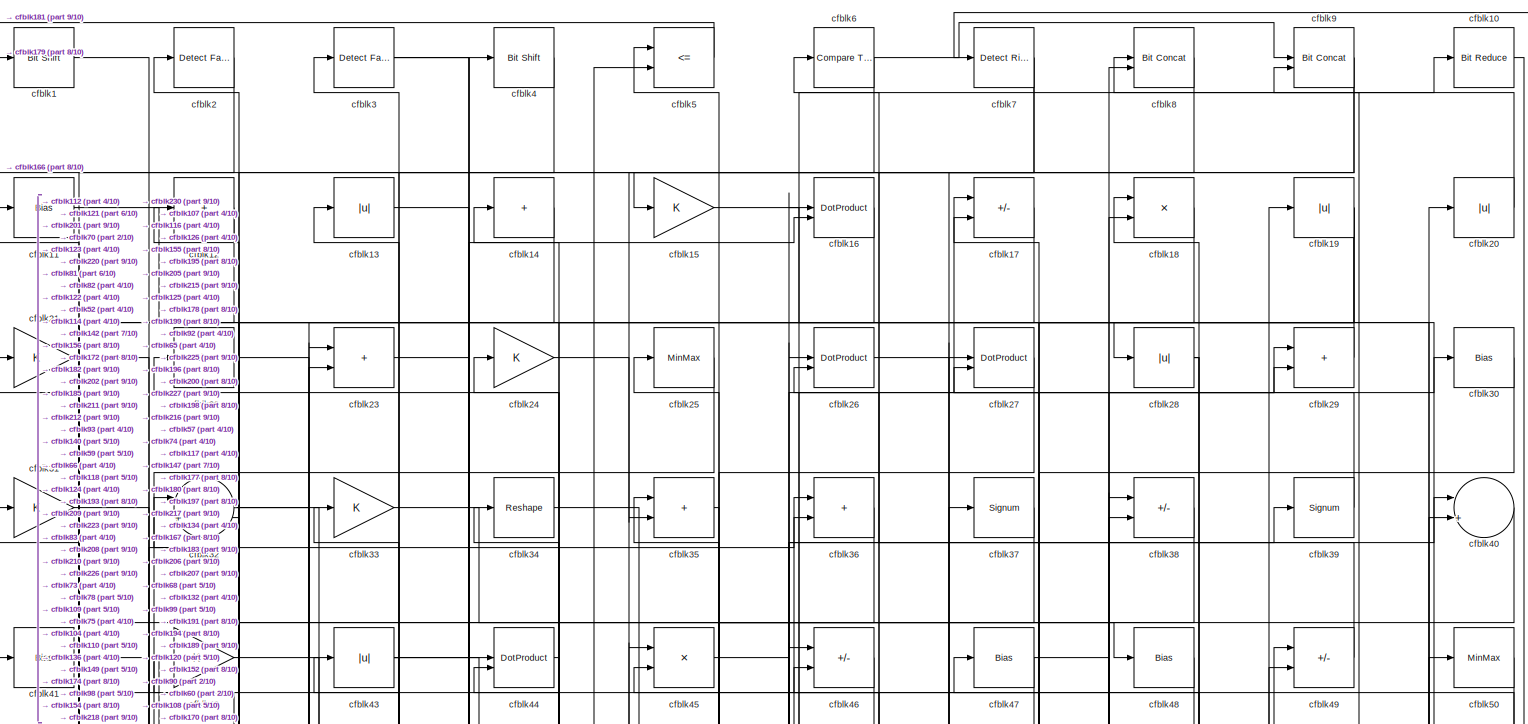
[diagram: root canvas - part 1/10, full width, top band]
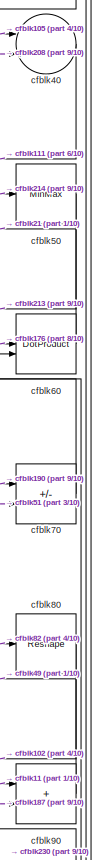
[diagram: root canvas - part 2/10, top right region]
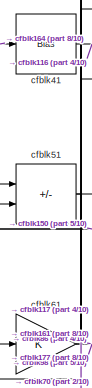
[diagram: root canvas - part 3/10, top left region]
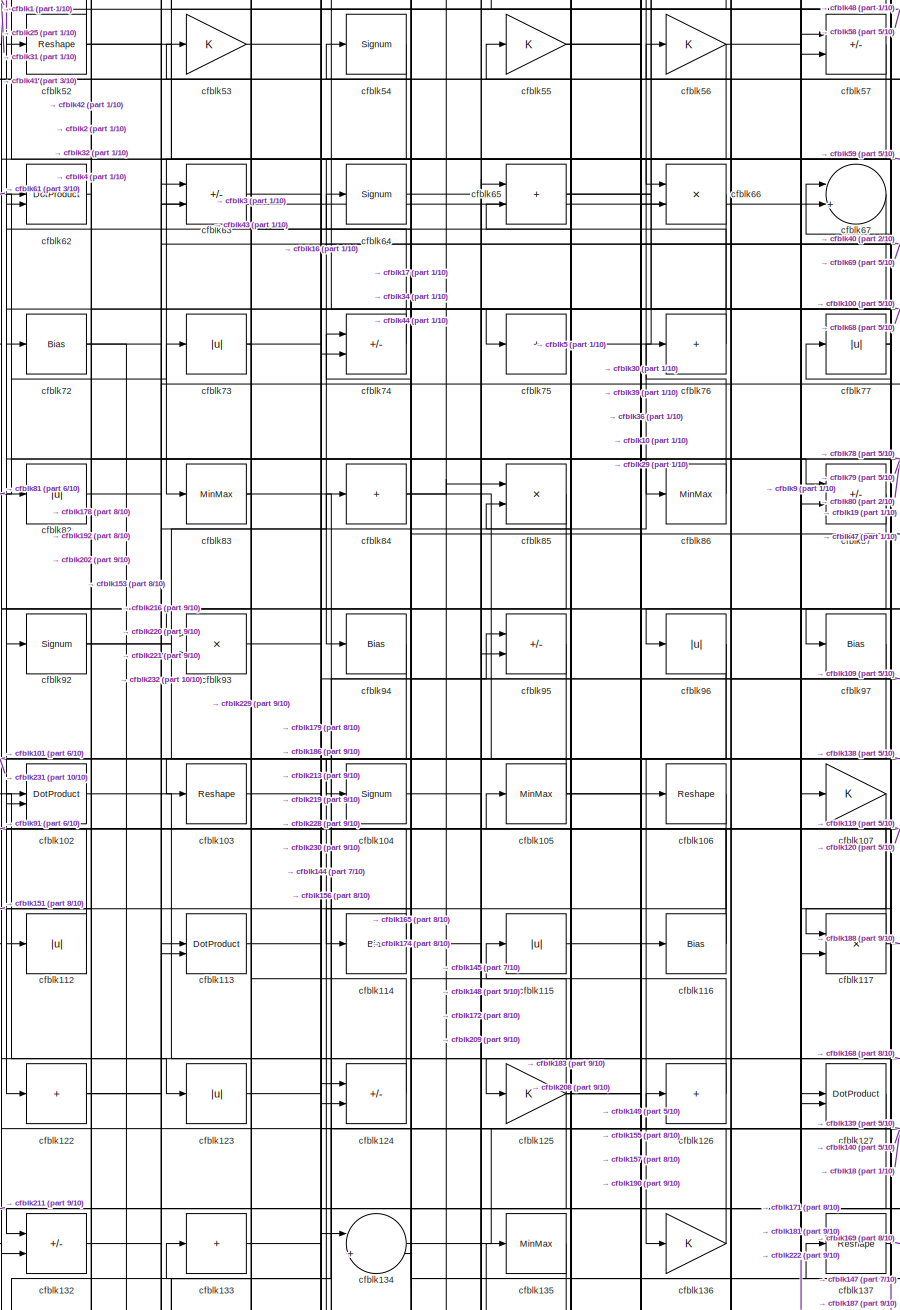
[diagram: root canvas - part 4/10, central region]
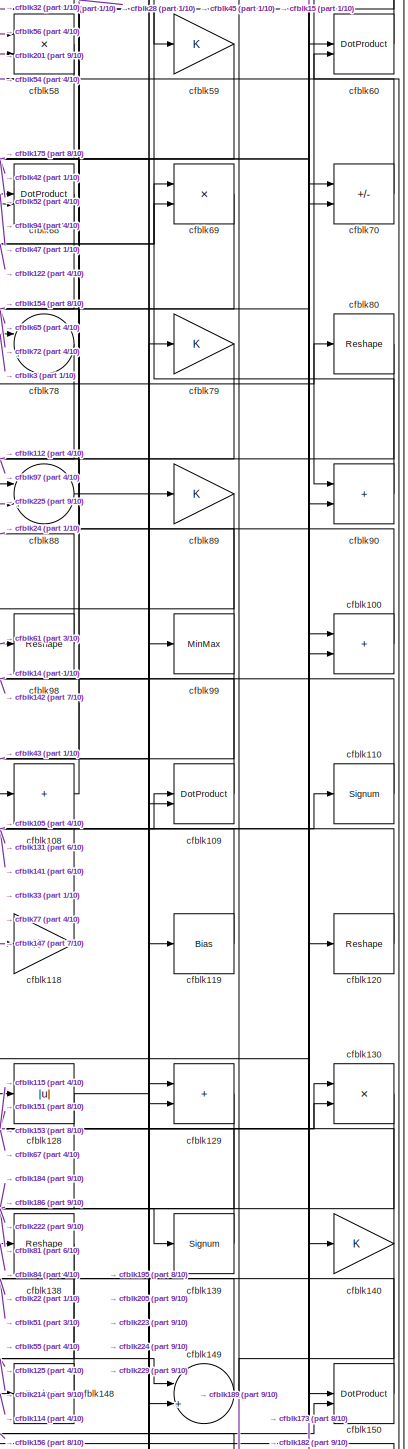
[diagram: root canvas - part 5/10, middle right region]
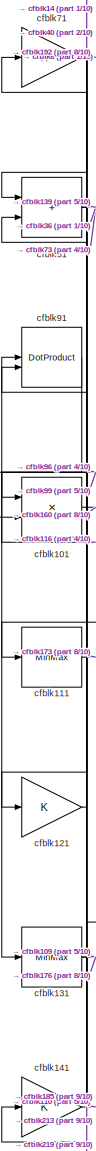
[diagram: root canvas - part 6/10, middle left region]
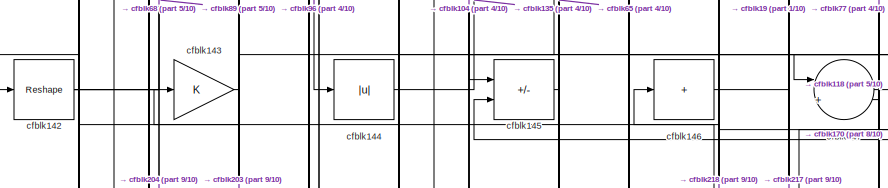
[diagram: root canvas - part 7/10, central region]
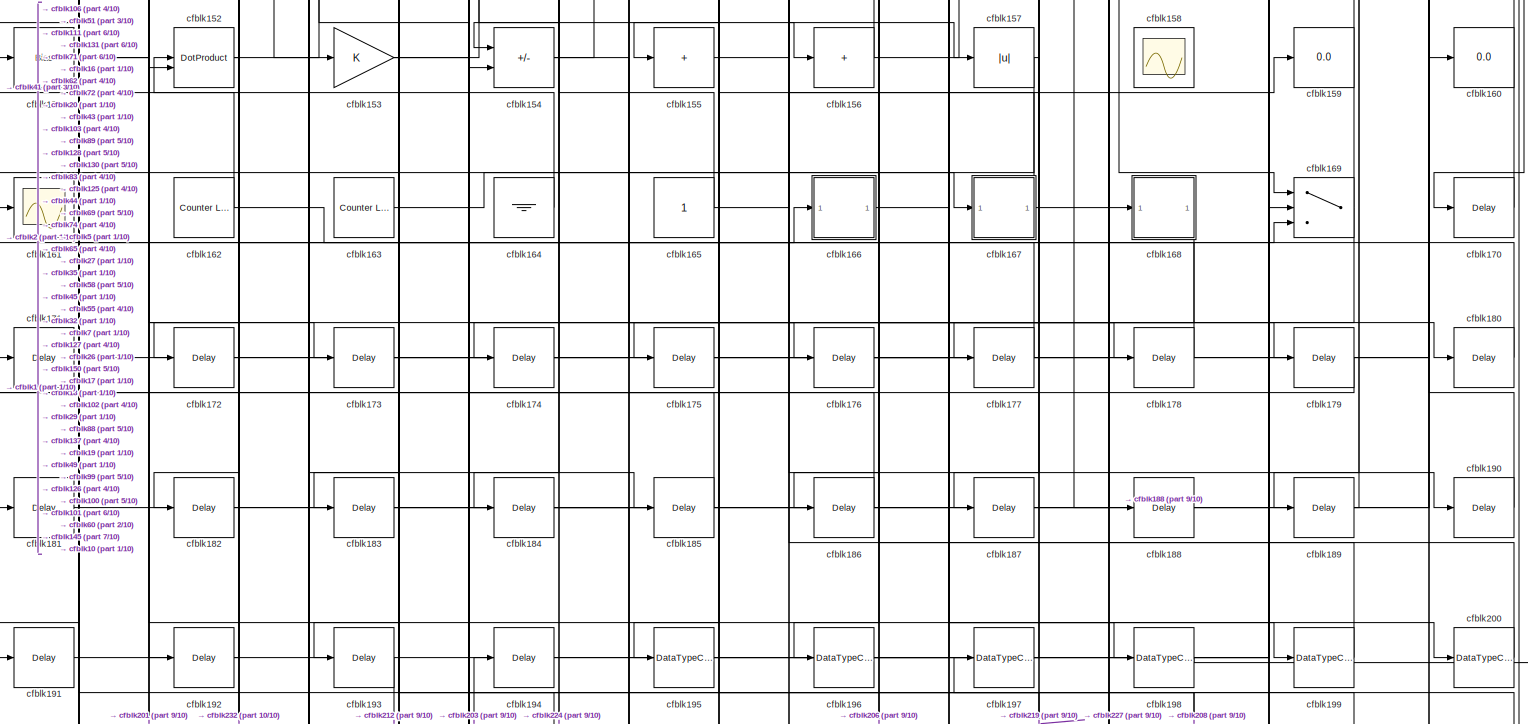
[diagram: root canvas - part 8/10, full width, bottom band]
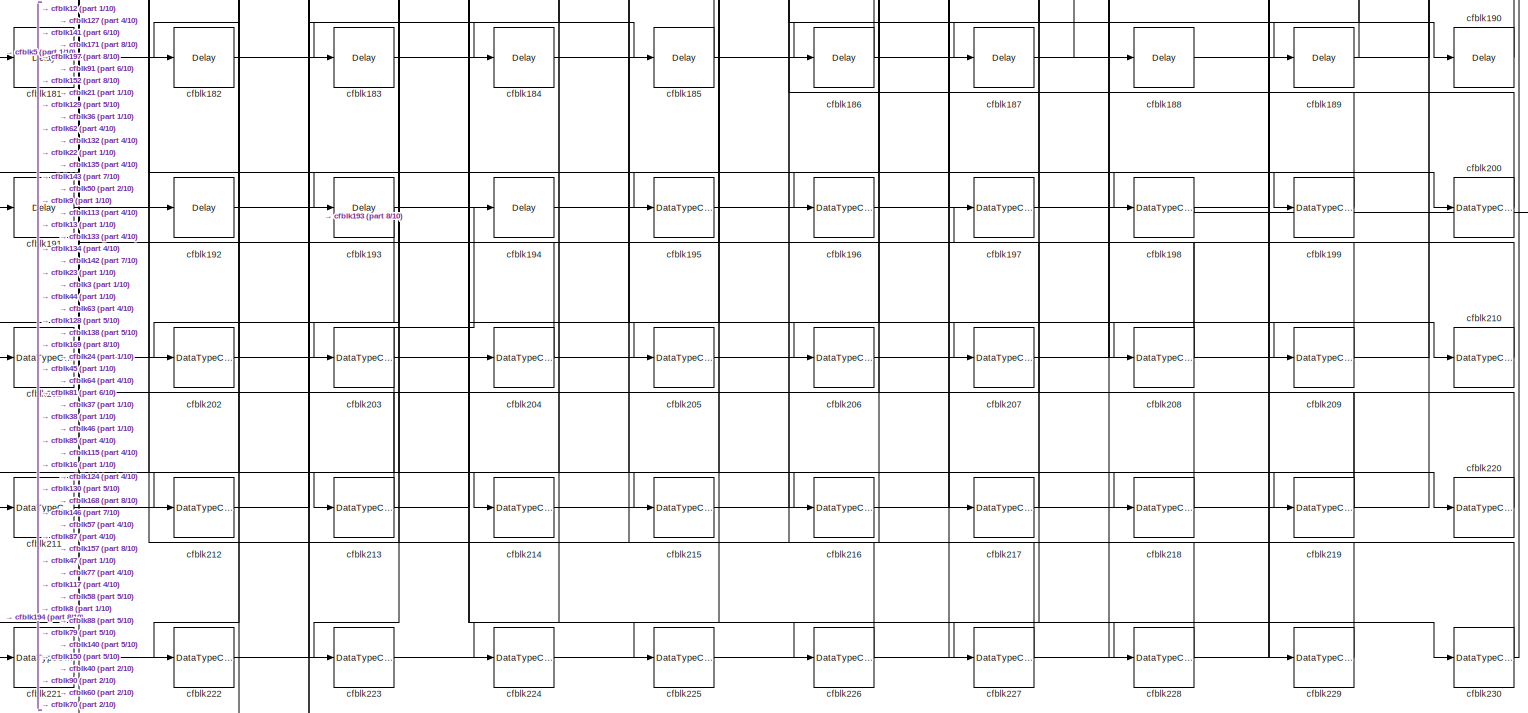
[diagram: root canvas - part 9/10, full width, bottom band]
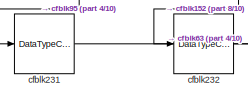
[diagram: root canvas - part 10/10, bottom left region]
MODEL slx_d86e9903bf49
KIND model
CONFIG AbsTol = auto
CONFIG EnableMultiTasking = off
CONFIG FixedStep = auto
CONFIG MaxStep = auto
CONFIG MinStep = auto
CONFIG RelTol = 1e-3
CONFIG SampleTimeConstraint = Unconstrained
CONFIG SolverName = VariableStepAuto
CONFIG StartTime = 0.0
CONFIG StopTime = 10.0
BLOCK [Reference] cfblk1  REF=hdlsllib/Logic and Bit
Operations/Bit Shift
  SourceBlock = hdlsllib/Logic and Bit\nOperations/Bit Shift
  SourceType = Bit Shift
BLOCK [Reference] cfblk10  REF=hdlsllib/Logic and Bit
Operations/Bit Reduce
  SourceBlock = hdlsllib/Logic and Bit\nOperations/Bit Reduce
  SourceType = Bit Reduce
BLOCK [Sum] cfblk100
  IconShape = rectangular
BLOCK [Product] cfblk101
  Inputs = */
  RndMeth = Zero
  SaturateOnIntegerOverflow = on
BLOCK [DotProduct] cfblk102
  OutDataTypeStr = Inherit: Inherit via internal rule
BLOCK [Reshape] cfblk103
BLOCK [Signum] cfblk104
BLOCK [MinMax] cfblk105
BLOCK [Reshape] cfblk106
BLOCK [Gain] cfblk107
BLOCK [Sum] cfblk108
  IconShape = rectangular
  Inputs = +
BLOCK [DotProduct] cfblk109
  OutDataTypeStr = Inherit: Inherit via internal rule
BLOCK [Bias] cfblk11
  Bias = 0.0
  SaturateOnIntegerOverflow = off
BLOCK [Signum] cfblk110
BLOCK [MinMax] cfblk111
BLOCK [Abs] cfblk112
  SaturateOnIntegerOverflow = off
BLOCK [DotProduct] cfblk113
  OutDataTypeStr = Inherit: Inherit via internal rule
BLOCK [Bias] cfblk114
  Bias = 0.0
  SaturateOnIntegerOverflow = off
BLOCK [Abs] cfblk115
  SaturateOnIntegerOverflow = off
BLOCK [Bias] cfblk116
  Bias = 0.0
  SaturateOnIntegerOverflow = off
BLOCK [Product] cfblk117
  Inputs = */
  RndMeth = Zero
  SaturateOnIntegerOverflow = on
BLOCK [Gain] cfblk118
BLOCK [Bias] cfblk119
  Bias = 0.0
  SaturateOnIntegerOverflow = off
BLOCK [Sum] cfblk12
  IconShape = rectangular
  Inputs = +
BLOCK [Reshape] cfblk120
BLOCK [Gain] cfblk121
BLOCK [Sum] cfblk122
  IconShape = rectangular
  Inputs = +
BLOCK [Abs] cfblk123
  SaturateOnIntegerOverflow = off
BLOCK [Sum] cfblk124
  IconShape = rectangular
  Inputs = +-
BLOCK [Gain] cfblk125
BLOCK [Sum] cfblk126
  IconShape = rectangular
  Inputs = +
BLOCK [DotProduct] cfblk127
  OutDataTypeStr = Inherit: Inherit via internal rule
BLOCK [Abs] cfblk128
  SaturateOnIntegerOverflow = off
BLOCK [Sum] cfblk129
  IconShape = rectangular
BLOCK [Abs] cfblk13
  SaturateOnIntegerOverflow = off
BLOCK [Product] cfblk130
  Inputs = */
  RndMeth = Zero
  SaturateOnIntegerOverflow = on
BLOCK [MinMax] cfblk131
BLOCK [Sum] cfblk132
  IconShape = rectangular
  Inputs = +-
BLOCK [Sum] cfblk133
  IconShape = rectangular
  Inputs = +
BLOCK [Sum] cfblk134
  Inputs = |++
BLOCK [MinMax] cfblk135
BLOCK [Gain] cfblk136
BLOCK [Reshape] cfblk137
BLOCK [Reshape] cfblk138
BLOCK [Signum] cfblk139
BLOCK [Sum] cfblk14
  IconShape = rectangular
  Inputs = +
BLOCK [Gain] cfblk140
BLOCK [Gain] cfblk141
BLOCK [Reshape] cfblk142
BLOCK [Gain] cfblk143
BLOCK [Abs] cfblk144
  SaturateOnIntegerOverflow = off
BLOCK [Sum] cfblk145
  IconShape = rectangular
  Inputs = +-
BLOCK [Sum] cfblk146
  IconShape = rectangular
  Inputs = +
BLOCK [Sum] cfblk147
  Inputs = |++
BLOCK [Reshape] cfblk148
BLOCK [Sum] cfblk149
  Inputs = |++
BLOCK [Gain] cfblk15
BLOCK [DotProduct] cfblk150
  OutDataTypeStr = Inherit: Inherit via internal rule
BLOCK [Bias] cfblk151
  Bias = 0.0
  SaturateOnIntegerOverflow = off
BLOCK [DotProduct] cfblk152
  OutDataTypeStr = Inherit: Inherit via internal rule
BLOCK [Gain] cfblk153
BLOCK [Sum] cfblk154
  IconShape = rectangular
  Inputs = +-
BLOCK [Sum] cfblk155
  IconShape = rectangular
  Inputs = +
BLOCK [Sum] cfblk156
  IconShape = rectangular
  Inputs = +
BLOCK [Abs] cfblk157
  SaturateOnIntegerOverflow = off
BLOCK [Scope] cfblk158
  Floating = on
  NumInputPorts = 1
  ScopeSpecificationString = Simulink.scopes.TimeScopeBlockCfg('CurrentConfiguration', extmgr.ConfigurationSet(extmgr.Configuration('Core','General UI',true,'FigureColor',[0.156862745098039 0.156862745098039 0.156862745098039]),extmgr.Configuration('Core','Source UI',true),extmgr.Configuration('Sources','WiredSimulink',true,'DataLoggingVariableName','ScopeData1','DataLoggingSaveFormat','StructureWithTime','DataLoggingLimitDat...<+2713ch>
BLOCK [Display] cfblk159
  Decimation = 1
BLOCK [DotProduct] cfblk16
  OutDataTypeStr = Inherit: Inherit via internal rule
BLOCK [Display] cfblk160
  Decimation = 1
BLOCK [Scope] cfblk161
  Floating = off
  NumInputPorts = 1
  ScopeSpecificationString = Simulink.scopes.TimeScopeBlockCfg('CurrentConfiguration', extmgr.ConfigurationSet(extmgr.Configuration('Core','General UI',true),extmgr.Configuration('Core','Source UI',true),extmgr.Configuration('Sources','WiredSimulink',true,'DataLoggingVariableName','ScopeData2','DataLoggingSaveFormat','Array','DataLoggingLimitDataPoints',true,'DataLoggingDecimation','1'),extmgr.Configuration('Visuals','Time Do...<+868ch>
BLOCK [Reference] cfblk162  REF=hdlsllib/Sources/Counter
Limited
  SourceBlock = hdlsllib/Sources/Counter\nLimited
  SourceType = Counter Limited
BLOCK [Reference] cfblk163  REF=hdlsllib/Sources/Counter
Limited
  SourceBlock = hdlsllib/Sources/Counter\nLimited
  SourceType = Counter Limited
BLOCK [Ground] cfblk164
BLOCK [Constant] cfblk165
  SampleTime = -1
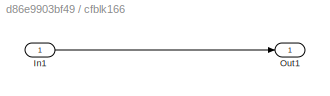
BLOCK [SubSystem] cfblk166
  LibrarySourceBlock = hdlsllib/Ports &\nSubsystems/Subsystem
BLOCK [Inport] cfblk166/In1
BLOCK [Outport] cfblk166/Out1
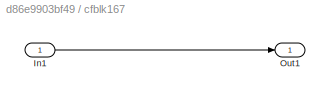
BLOCK [SubSystem] cfblk167
  LibrarySourceBlock = hdlsllib/Ports &\nSubsystems/Subsystem
BLOCK [Inport] cfblk167/In1
BLOCK [Outport] cfblk167/Out1
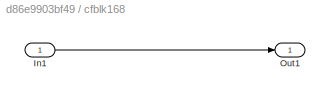
BLOCK [SubSystem] cfblk168
  LibrarySourceBlock = hdlsllib/Ports &\nSubsystems/Subsystem
BLOCK [Inport] cfblk168/In1
BLOCK [Outport] cfblk168/Out1
BLOCK [Switch] cfblk169
  InputSameDT = off
  SaturateOnIntegerOverflow = off
BLOCK [Sum] cfblk17
  IconShape = rectangular
  Inputs = +-
BLOCK [Delay] cfblk170
  InputPortMap = u0
  SampleTime = 1
BLOCK [Delay] cfblk171
  InputPortMap = u0
  SampleTime = 1
BLOCK [Delay] cfblk172
  InputPortMap = u0
  SampleTime = 1
BLOCK [Delay] cfblk173
  InputPortMap = u0
  SampleTime = 1
BLOCK [Delay] cfblk174
  InputPortMap = u0
  SampleTime = 1
BLOCK [Delay] cfblk175
  InputPortMap = u0
  SampleTime = 1
BLOCK [Delay] cfblk176
  InputPortMap = u0
  SampleTime = 1
BLOCK [Delay] cfblk177
  InputPortMap = u0
  SampleTime = 1
BLOCK [Delay] cfblk178
  InputPortMap = u0
  SampleTime = 1
BLOCK [Delay] cfblk179
  InputPortMap = u0
  SampleTime = 1
BLOCK [Product] cfblk18
  Inputs = */
  RndMeth = Zero
  SaturateOnIntegerOverflow = on
BLOCK [Delay] cfblk180
  InputPortMap = u0
  SampleTime = 1
BLOCK [Delay] cfblk181
  InputPortMap = u0
  SampleTime = 1
BLOCK [Delay] cfblk182
  InputPortMap = u0
  SampleTime = 1
BLOCK [Delay] cfblk183
  InputPortMap = u0
  SampleTime = 1
BLOCK [Delay] cfblk184
  InputPortMap = u0
  SampleTime = 1
BLOCK [Delay] cfblk185
  InputPortMap = u0
  SampleTime = 1
BLOCK [Delay] cfblk186
  InputPortMap = u0
  SampleTime = 1
BLOCK [Delay] cfblk187
  InputPortMap = u0
  SampleTime = 1
BLOCK [Delay] cfblk188
  InputPortMap = u0
  SampleTime = 1
BLOCK [Delay] cfblk189
  InputPortMap = u0
  SampleTime = 1
BLOCK [Abs] cfblk19
  SaturateOnIntegerOverflow = off
BLOCK [Delay] cfblk190
  InputPortMap = u0
  SampleTime = 1
BLOCK [Delay] cfblk191
  InputPortMap = u0
  SampleTime = 1
BLOCK [Delay] cfblk192
  InputPortMap = u0
  SampleTime = 1
BLOCK [Delay] cfblk193
  InputPortMap = u0
  SampleTime = 1
BLOCK [Delay] cfblk194
  InputPortMap = u0
  SampleTime = 1
BLOCK [DataTypeConversion] cfblk195
  OutDataTypeStr = uint8
  RndMeth = Floor
  SaturateOnIntegerOverflow = off
BLOCK [DataTypeConversion] cfblk196
  OutDataTypeStr = uint8
  RndMeth = Floor
  SaturateOnIntegerOverflow = off
BLOCK [DataTypeConversion] cfblk197
  OutDataTypeStr = uint8
  RndMeth = Floor
  SaturateOnIntegerOverflow = off
BLOCK [DataTypeConversion] cfblk198
  OutDataTypeStr = uint8
  RndMeth = Floor
  SaturateOnIntegerOverflow = off
BLOCK [DataTypeConversion] cfblk199
  OutDataTypeStr = uint8
  RndMeth = Floor
  SaturateOnIntegerOverflow = off
BLOCK [Reference] cfblk2  REF=hdlsllib/Logic and Bit
Operations/Detect Fall
Nonpositive
  SourceBlock = hdlsllib/Logic and Bit\nOperations/Detect Fall\nNonpositive
  SourceType = Detect Fall Nonpositive
BLOCK [Abs] cfblk20
  SaturateOnIntegerOverflow = off
BLOCK [DataTypeConversion] cfblk200
  OutDataTypeStr = uint8
  RndMeth = Floor
  SaturateOnIntegerOverflow = off
BLOCK [DataTypeConversion] cfblk201
  RndMeth = Floor
  SaturateOnIntegerOverflow = off
BLOCK [DataTypeConversion] cfblk202
  OutDataTypeStr = uint8
  RndMeth = Floor
  SaturateOnIntegerOverflow = off
BLOCK [DataTypeConversion] cfblk203
  RndMeth = Floor
  SaturateOnIntegerOverflow = off
BLOCK [DataTypeConversion] cfblk204
  OutDataTypeStr = uint8
  RndMeth = Floor
  SaturateOnIntegerOverflow = off
BLOCK [DataTypeConversion] cfblk205
  OutDataTypeStr = uint8
  RndMeth = Floor
  SaturateOnIntegerOverflow = off
BLOCK [DataTypeConversion] cfblk206
  OutDataTypeStr = uint8
  RndMeth = Floor
  SaturateOnIntegerOverflow = off
BLOCK [DataTypeConversion] cfblk207
  OutDataTypeStr = uint8
  RndMeth = Floor
  SaturateOnIntegerOverflow = off
BLOCK [DataTypeConversion] cfblk208
  RndMeth = Floor
  SaturateOnIntegerOverflow = off
BLOCK [DataTypeConversion] cfblk209
  OutDataTypeStr = uint8
  RndMeth = Floor
  SaturateOnIntegerOverflow = off
BLOCK [Gain] cfblk21
BLOCK [DataTypeConversion] cfblk210
  OutDataTypeStr = uint8
  RndMeth = Floor
  SaturateOnIntegerOverflow = off
BLOCK [DataTypeConversion] cfblk211
  OutDataTypeStr = uint8
  RndMeth = Floor
  SaturateOnIntegerOverflow = off
BLOCK [DataTypeConversion] cfblk212
  OutDataTypeStr = uint8
  RndMeth = Floor
  SaturateOnIntegerOverflow = off
BLOCK [DataTypeConversion] cfblk213
  RndMeth = Floor
  SaturateOnIntegerOverflow = off
BLOCK [DataTypeConversion] cfblk214
  OutDataTypeStr = uint8
  RndMeth = Floor
  SaturateOnIntegerOverflow = off
BLOCK [DataTypeConversion] cfblk215
  OutDataTypeStr = uint8
  RndMeth = Floor
  SaturateOnIntegerOverflow = off
BLOCK [DataTypeConversion] cfblk216
  OutDataTypeStr = uint8
  RndMeth = Floor
  SaturateOnIntegerOverflow = off
BLOCK [DataTypeConversion] cfblk217
  OutDataTypeStr = uint8
  RndMeth = Floor
  SaturateOnIntegerOverflow = off
BLOCK [DataTypeConversion] cfblk218
  OutDataTypeStr = uint8
  RndMeth = Floor
  SaturateOnIntegerOverflow = off
BLOCK [DataTypeConversion] cfblk219
  RndMeth = Floor
  SaturateOnIntegerOverflow = off
BLOCK [Bias] cfblk22
  Bias = 0.0
  SaturateOnIntegerOverflow = off
BLOCK [DataTypeConversion] cfblk220
  OutDataTypeStr = uint8
  RndMeth = Floor
  SaturateOnIntegerOverflow = off
BLOCK [DataTypeConversion] cfblk221
  OutDataTypeStr = uint8
  RndMeth = Floor
  SaturateOnIntegerOverflow = off
BLOCK [DataTypeConversion] cfblk222
  OutDataTypeStr = uint8
  RndMeth = Floor
  SaturateOnIntegerOverflow = off
BLOCK [DataTypeConversion] cfblk223
  OutDataTypeStr = uint8
  RndMeth = Floor
  SaturateOnIntegerOverflow = off
BLOCK [DataTypeConversion] cfblk224
  OutDataTypeStr = uint8
  RndMeth = Floor
  SaturateOnIntegerOverflow = off
BLOCK [DataTypeConversion] cfblk225
  OutDataTypeStr = uint8
  RndMeth = Floor
  SaturateOnIntegerOverflow = off
BLOCK [DataTypeConversion] cfblk226
  OutDataTypeStr = uint8
  RndMeth = Floor
  SaturateOnIntegerOverflow = off
BLOCK [DataTypeConversion] cfblk227
  OutDataTypeStr = uint8
  RndMeth = Floor
  SaturateOnIntegerOverflow = off
BLOCK [DataTypeConversion] cfblk228
  OutDataTypeStr = uint8
  RndMeth = Floor
  SaturateOnIntegerOverflow = off
BLOCK [DataTypeConversion] cfblk229
  OutDataTypeStr = uint8
  RndMeth = Floor
  SaturateOnIntegerOverflow = off
BLOCK [Sum] cfblk23
  IconShape = rectangular
BLOCK [DataTypeConversion] cfblk230
  RndMeth = Floor
  SaturateOnIntegerOverflow = off
BLOCK [DataTypeConversion] cfblk231
  OutDataTypeStr = uint8
  RndMeth = Floor
  SaturateOnIntegerOverflow = off
BLOCK [DataTypeConversion] cfblk232
  OutDataTypeStr = uint8
  RndMeth = Floor
  SaturateOnIntegerOverflow = off
BLOCK [Gain] cfblk24
BLOCK [MinMax] cfblk25
BLOCK [DotProduct] cfblk26
  OutDataTypeStr = Inherit: Inherit via internal rule
BLOCK [DotProduct] cfblk27
  OutDataTypeStr = Inherit: Inherit via internal rule
BLOCK [Abs] cfblk28
  SaturateOnIntegerOverflow = off
BLOCK [Sum] cfblk29
  IconShape = rectangular
BLOCK [Reference] cfblk3  REF=hdlsllib/Logic and Bit
Operations/Detect Fall
Negative
  SourceBlock = hdlsllib/Logic and Bit\nOperations/Detect Fall\nNegative
  SourceType = Detect Fall Negative
BLOCK [Bias] cfblk30
  Bias = 0.0
  SaturateOnIntegerOverflow = off
BLOCK [Gain] cfblk31
BLOCK [Sum] cfblk32
  Inputs = |++
BLOCK [Gain] cfblk33
BLOCK [Reshape] cfblk34
BLOCK [Sum] cfblk35
  IconShape = rectangular
BLOCK [Sum] cfblk36
  IconShape = rectangular
BLOCK [Signum] cfblk37
BLOCK [Sum] cfblk38
  IconShape = rectangular
  Inputs = +-
BLOCK [Signum] cfblk39
BLOCK [Reference] cfblk4  REF=hdlsllib/Logic and Bit
Operations/Bit Shift
  SourceBlock = hdlsllib/Logic and Bit\nOperations/Bit Shift
  SourceType = Bit Shift
BLOCK [Sum] cfblk40
  Inputs = |++
BLOCK [Bias] cfblk41
  Bias = 0.0
  SaturateOnIntegerOverflow = off
BLOCK [Gain] cfblk42
BLOCK [Abs] cfblk43
  SaturateOnIntegerOverflow = off
BLOCK [DotProduct] cfblk44
  OutDataTypeStr = Inherit: Inherit via internal rule
BLOCK [Product] cfblk45
  Inputs = */
  RndMeth = Zero
  SaturateOnIntegerOverflow = on
BLOCK [Sum] cfblk46
  IconShape = rectangular
  Inputs = +-
BLOCK [Bias] cfblk47
  Bias = 0.0
  SaturateOnIntegerOverflow = off
BLOCK [Bias] cfblk48
  Bias = 0.0
  SaturateOnIntegerOverflow = off
BLOCK [Sum] cfblk49
  IconShape = rectangular
  Inputs = +-
BLOCK [RelationalOperator] cfblk5
  InputSameDT = off
  Operator = <=
  OutDataTypeStr = boolean
BLOCK [MinMax] cfblk50
BLOCK [Sum] cfblk51
  IconShape = rectangular
  Inputs = +-
BLOCK [Reshape] cfblk52
BLOCK [Gain] cfblk53
BLOCK [Signum] cfblk54
BLOCK [Gain] cfblk55
BLOCK [Gain] cfblk56
BLOCK [Sum] cfblk57
  IconShape = rectangular
  Inputs = +-
BLOCK [Product] cfblk58
  Inputs = */
  RndMeth = Zero
  SaturateOnIntegerOverflow = on
BLOCK [Gain] cfblk59
BLOCK [Reference] cfblk6  REF=hdlsllib/Logic and Bit
Operations/Compare
To Zero
  SourceBlock = hdlsllib/Logic and Bit\nOperations/Compare\nTo Zero
  SourceType = Compare To Zero
BLOCK [DotProduct] cfblk60
  OutDataTypeStr = Inherit: Inherit via internal rule
BLOCK [Gain] cfblk61
BLOCK [DotProduct] cfblk62
  OutDataTypeStr = Inherit: Inherit via internal rule
BLOCK [Sum] cfblk63
  IconShape = rectangular
  Inputs = +-
BLOCK [Signum] cfblk64
BLOCK [Sum] cfblk65
  IconShape = rectangular
BLOCK [Product] cfblk66
  Inputs = */
  RndMeth = Zero
  SaturateOnIntegerOverflow = on
BLOCK [Sum] cfblk67
  Inputs = |++
BLOCK [DotProduct] cfblk68
  OutDataTypeStr = Inherit: Inherit via internal rule
BLOCK [Product] cfblk69
  Inputs = */
  RndMeth = Zero
  SaturateOnIntegerOverflow = on
BLOCK [Reference] cfblk7  REF=hdlsllib/Logic and Bit
Operations/Detect Rise
Positive
  SourceBlock = hdlsllib/Logic and Bit\nOperations/Detect Rise\nPositive
  SourceType = Detect Rise Positive
BLOCK [Sum] cfblk70
  IconShape = rectangular
  Inputs = +-
BLOCK [Gain] cfblk71
BLOCK [Bias] cfblk72
  Bias = 0.0
  SaturateOnIntegerOverflow = off
BLOCK [Abs] cfblk73
  SaturateOnIntegerOverflow = off
BLOCK [Sum] cfblk74
  IconShape = rectangular
  Inputs = +-
BLOCK [Sum] cfblk75
  IconShape = rectangular
  Inputs = +
BLOCK [Sum] cfblk76
  IconShape = rectangular
  Inputs = +
BLOCK [Abs] cfblk77
  SaturateOnIntegerOverflow = off
BLOCK [Sum] cfblk78
  Inputs = |++
BLOCK [Gain] cfblk79
BLOCK [Reference] cfblk8  REF=hdlsllib/Logic and Bit
Operations/Bit Concat
  SourceBlock = hdlsllib/Logic and Bit\nOperations/Bit Concat
  SourceType = Bit Concat
BLOCK [Reshape] cfblk80
BLOCK [Sum] cfblk81
  IconShape = rectangular
BLOCK [Abs] cfblk82
  SaturateOnIntegerOverflow = off
BLOCK [MinMax] cfblk83
BLOCK [Sum] cfblk84
  IconShape = rectangular
  Inputs = +
BLOCK [Product] cfblk85
  Inputs = */
  RndMeth = Zero
  SaturateOnIntegerOverflow = on
BLOCK [MinMax] cfblk86
BLOCK [Sum] cfblk87
  IconShape = rectangular
  Inputs = +-
BLOCK [Sum] cfblk88
  Inputs = |++
BLOCK [Gain] cfblk89
BLOCK [Reference] cfblk9  REF=hdlsllib/Logic and Bit
Operations/Bit Concat
  SourceBlock = hdlsllib/Logic and Bit\nOperations/Bit Concat
  SourceType = Bit Concat
BLOCK [Sum] cfblk90
  IconShape = rectangular
BLOCK [DotProduct] cfblk91
  OutDataTypeStr = Inherit: Inherit via internal rule
BLOCK [Signum] cfblk92
BLOCK [Product] cfblk93
  Inputs = */
  RndMeth = Zero
  SaturateOnIntegerOverflow = on
BLOCK [Bias] cfblk94
  Bias = 0.0
  SaturateOnIntegerOverflow = off
BLOCK [Sum] cfblk95
  IconShape = rectangular
  Inputs = +-
BLOCK [Abs] cfblk96
  SaturateOnIntegerOverflow = off
BLOCK [Bias] cfblk97
  Bias = 0.0
  SaturateOnIntegerOverflow = off
BLOCK [Reshape] cfblk98
BLOCK [MinMax] cfblk99
LINE cfblk100:1 -> cfblk54:1
LINE cfblk101:1 -> cfblk160:1
LINE cfblk102:1 -> cfblk168:1
LINE cfblk103:1 -> cfblk179:1
LINE cfblk104:1 -> cfblk145:1
NET cfblk105:1 -> cfblk103:1, cfblk40:1, cfblk69:2
LINE cfblk106:1 -> cfblk151:1
LINE cfblk107:1 -> cfblk127:2
LINE cfblk108:1 -> cfblk18:1
LINE cfblk109:1 -> cfblk56:1
LINE cfblk10:1 -> cfblk170:1
LINE cfblk110:1 -> cfblk14:1
LINE cfblk111:1 -> cfblk173:1
LINE cfblk112:1 -> cfblk31:1
LINE cfblk113:1 -> cfblk219:1
NET cfblk114:1 -> cfblk148:1, cfblk32:1
LINE cfblk115:1 -> cfblk190:1
NET cfblk116:1 -> cfblk5:1, cfblk91:1
NET cfblk117:1 -> cfblk188:1, cfblk61:1
LINE cfblk118:1 -> cfblk33:1
LINE cfblk119:1 -> cfblk105:1
LINE cfblk11:1 -> cfblk90:1
LINE cfblk120:1 -> cfblk77:1
LINE cfblk121:1 -> cfblk71:1
NET cfblk122:1 -> cfblk69:1, cfblk84:1
LINE cfblk123:1 -> cfblk95:1
LINE cfblk124:1 -> cfblk3:1
NET cfblk125:1 -> cfblk149:1, cfblk174:1, cfblk30:1, cfblk39:1, cfblk64:1
LINE cfblk126:1 -> cfblk25:1
LINE cfblk127:1 -> cfblk211:1
NET cfblk128:1 -> cfblk149:2, cfblk184:1
LINE cfblk129:1 -> cfblk222:1
LINE cfblk12:1 -> cfblk201:1
LINE cfblk130:1 -> cfblk186:1
NET cfblk131:1 -> cfblk109:1, cfblk176:1
LINE cfblk132:1 -> cfblk216:1
LINE cfblk133:1 -> cfblk228:1
LINE cfblk134:1 -> cfblk18:2
LINE cfblk135:1 -> cfblk183:1
LINE cfblk136:1 -> cfblk34:1
LINE cfblk137:1 -> cfblk169:1
LINE cfblk138:1 -> cfblk214:1
LINE cfblk139:1 -> cfblk115:1
LINE cfblk13:1 -> cfblk208:1
NET cfblk140:1 -> cfblk189:1, cfblk67:1
LINE cfblk141:1 -> cfblk110:1
NET cfblk142:1 -> cfblk204:1, cfblk68:2, cfblk89:1
LINE cfblk143:1 -> cfblk203:1
LINE cfblk144:1 -> cfblk135:1
LINE cfblk145:1 -> cfblk65:2
LINE cfblk146:1 -> cfblk217:1
LINE cfblk147:1 -> cfblk118:1
LINE cfblk148:1 -> cfblk55:1
LINE cfblk149:1 -> cfblk22:1
LINE cfblk14:1 -> cfblk81:1
LINE cfblk150:1 -> cfblk51:1
NET cfblk151:1 -> cfblk130:1, cfblk200:1
NET cfblk152:1 -> cfblk20:1, cfblk232:1
NET cfblk153:1 -> cfblk128:1, cfblk130:2
NET cfblk154:1 -> cfblk180:1, cfblk5:2
LINE cfblk155:1 -> cfblk137:1
NET cfblk156:1 -> cfblk150:2, cfblk32:2
NET cfblk157:1 -> cfblk191:1, cfblk227:1
LINE cfblk15:1 -> cfblk120:1
NET cfblk162:1 -> cfblk152:1, cfblk169:3
LINE cfblk163:1 -> cfblk167:1
LINE cfblk164:1 -> cfblk41:1
NET cfblk165:1 -> cfblk159:1, cfblk74:1
LINE cfblk166/In1:1 -> cfblk166/Out1:1
LINE cfblk166:1 -> cfblk199:1
LINE cfblk167/In1:1 -> cfblk167/Out1:1
NET cfblk167:1 -> cfblk29:2, cfblk35:1
LINE cfblk168/In1:1 -> cfblk168/Out1:1
LINE cfblk168:1 -> cfblk206:1
NET cfblk169:1 -> cfblk126:1, cfblk224:1
LINE cfblk16:1 -> cfblk172:1
LINE cfblk170:1 -> cfblk145:2
LINE cfblk171:1 -> cfblk127:1
LINE cfblk172:1 -> cfblk65:1
LINE cfblk173:1 -> cfblk100:1
LINE cfblk174:1 -> cfblk44:2
LINE cfblk175:1 -> cfblk88:1
LINE cfblk176:1 -> cfblk60:1
LINE cfblk177:1 -> cfblk51:2
LINE cfblk178:1 -> cfblk62:2
LINE cfblk179:1 -> cfblk1:1
LINE cfblk17:1 -> cfblk114:1
LINE cfblk180:1 -> cfblk17:2
LINE cfblk181:1 -> cfblk57:1
LINE cfblk182:1 -> cfblk150:1
LINE cfblk183:1 -> cfblk8:2
LINE cfblk184:1 -> cfblk207:1
LINE cfblk185:1 -> cfblk81:2
LINE cfblk186:1 -> cfblk124:1
LINE cfblk187:1 -> cfblk90:2
LINE cfblk188:1 -> cfblk169:2
LINE cfblk189:1 -> cfblk9:2
LINE cfblk18:1 -> cfblk177:1
LINE cfblk190:1 -> cfblk70:1
LINE cfblk191:1 -> cfblk49:2
LINE cfblk192:1 -> cfblk102:2
LINE cfblk193:1 -> cfblk212:1
LINE cfblk194:1 -> cfblk19:1
LINE cfblk195:1 -> cfblk99:1
LINE cfblk196:1 -> cfblk27:1
LINE cfblk197:1 -> cfblk27:2
LINE cfblk198:1 -> cfblk7:1
LINE cfblk199:1 -> cfblk26:1
NET cfblk19:1 -> cfblk142:1, cfblk147:2, cfblk93:2
LINE cfblk1:1 -> cfblk82:1
LINE cfblk200:1 -> cfblk26:2
NET cfblk201:1 -> cfblk152:2, cfblk58:2
LINE cfblk202:1 -> cfblk12:1
NET cfblk203:1 -> cfblk194:1, cfblk221:1
LINE cfblk204:1 -> cfblk143:1
LINE cfblk205:1 -> cfblk79:1
LINE cfblk206:1 -> cfblk38:1
LINE cfblk207:1 -> cfblk38:2
NET cfblk208:1 -> cfblk171:1, cfblk40:2, cfblk85:2
LINE cfblk209:1 -> cfblk13:1
LINE cfblk20:1 -> cfblk8:1
LINE cfblk210:1 -> cfblk44:1
LINE cfblk211:1 -> cfblk23:1
LINE cfblk212:1 -> cfblk23:2
NET cfblk213:1 -> cfblk134:1, cfblk141:1
LINE cfblk214:1 -> cfblk50:1
LINE cfblk215:1 -> cfblk16:1
LINE cfblk216:1 -> cfblk37:1
LINE cfblk217:1 -> cfblk47:1
LINE cfblk218:1 -> cfblk146:1
NET cfblk219:1 -> cfblk197:1, cfblk91:2
LINE cfblk21:1 -> cfblk220:1
LINE cfblk220:1 -> cfblk113:1
LINE cfblk221:1 -> cfblk113:2
LINE cfblk222:1 -> cfblk87:2
LINE cfblk223:1 -> cfblk129:1
LINE cfblk224:1 -> cfblk129:2
LINE cfblk225:1 -> cfblk88:2
LINE cfblk226:1 -> cfblk46:1
LINE cfblk227:1 -> cfblk46:2
LINE cfblk228:1 -> cfblk62:1
LINE cfblk229:1 -> cfblk133:1
LINE cfblk22:1 -> cfblk185:1
NET cfblk230:1 -> cfblk45:1, cfblk60:2
LINE cfblk231:1 -> cfblk63:1
LINE cfblk232:1 -> cfblk63:2
LINE cfblk23:1 -> cfblk210:1
LINE cfblk24:1 -> cfblk218:1
LINE cfblk25:1 -> cfblk122:1
LINE cfblk26:1 -> cfblk198:1
LINE cfblk27:1 -> cfblk195:1
NET cfblk28:1 -> cfblk108:1, cfblk78:2
LINE cfblk29:1 -> cfblk28:1
LINE cfblk2:1 -> cfblk166:1
LINE cfblk30:1 -> cfblk117:1
LINE cfblk31:1 -> cfblk123:1
NET cfblk32:1 -> cfblk59:1, cfblk66:2
LINE cfblk33:1 -> cfblk48:1
LINE cfblk34:1 -> cfblk107:1
LINE cfblk35:1 -> cfblk155:1
LINE cfblk36:1 -> cfblk182:1
LINE cfblk37:1 -> cfblk215:1
LINE cfblk38:1 -> cfblk205:1
LINE cfblk39:1 -> cfblk17:1
NET cfblk3:1 -> cfblk226:1, cfblk78:1
LINE cfblk40:1 -> cfblk111:1
LINE cfblk41:1 -> cfblk116:1
LINE cfblk42:1 -> cfblk140:1
NET cfblk43:1 -> cfblk109:2, cfblk193:1, cfblk75:1
LINE cfblk44:1 -> cfblk104:1
LINE cfblk45:1 -> cfblk178:1
LINE cfblk46:1 -> cfblk225:1
NET cfblk47:1 -> cfblk68:1, cfblk74:2
LINE cfblk48:1 -> cfblk132:1
LINE cfblk49:1 -> cfblk6:1
LINE cfblk4:1 -> cfblk52:1
LINE cfblk50:1 -> cfblk213:1
NET cfblk51:1 -> cfblk161:1, cfblk70:2
NET cfblk52:1 -> cfblk119:1, cfblk42:1, cfblk67:2
LINE cfblk53:1 -> cfblk66:1
LINE cfblk54:1 -> cfblk83:1
NET cfblk55:1 -> cfblk106:1, cfblk157:1
NET cfblk56:1 -> cfblk134:2, cfblk58:1
LINE cfblk57:1 -> cfblk125:1
LINE cfblk58:1 -> cfblk175:1
LINE cfblk59:1 -> cfblk94:1
LINE cfblk5:1 -> cfblk181:1
LINE cfblk60:1 -> cfblk21:1
NET cfblk61:1 -> cfblk86:1, cfblk98:1
LINE cfblk62:1 -> cfblk202:1
LINE cfblk63:1 -> cfblk230:1
LINE cfblk64:1 -> cfblk209:1
NET cfblk65:1 -> cfblk100:2, cfblk10:1
LINE cfblk66:1 -> cfblk95:2
LINE cfblk67:1 -> cfblk92:1
LINE cfblk68:1 -> cfblk72:1
LINE cfblk69:1 -> cfblk154:1
NET cfblk6:1 -> cfblk121:1, cfblk9:1
LINE cfblk70:1 -> cfblk11:1
LINE cfblk71:1 -> cfblk192:1
NET cfblk72:1 -> cfblk153:1, cfblk87:1
NET cfblk73:1 -> cfblk4:1, cfblk93:1
LINE cfblk74:1 -> cfblk2:1
LINE cfblk75:1 -> cfblk29:1
LINE cfblk76:1 -> cfblk53:1
NET cfblk77:1 -> cfblk147:1, cfblk187:1
LINE cfblk78:1 -> cfblk112:1
LINE cfblk79:1 -> cfblk97:1
NET cfblk7:1 -> cfblk15:1, cfblk196:1
LINE cfblk80:1 -> cfblk102:1
NET cfblk81:1 -> cfblk139:1, cfblk36:2, cfblk73:1
LINE cfblk82:1 -> cfblk80:1
NET cfblk83:1 -> cfblk156:1, cfblk43:1
NET cfblk84:1 -> cfblk138:1, cfblk85:1
LINE cfblk85:1 -> cfblk132:2
LINE cfblk86:1 -> cfblk76:1
LINE cfblk87:1 -> cfblk96:1
LINE cfblk88:1 -> cfblk229:1
LINE cfblk89:1 -> cfblk154:2
LINE cfblk8:1 -> cfblk35:2
LINE cfblk90:1 -> cfblk49:1
LINE cfblk91:1 -> cfblk101:1
NET cfblk92:1 -> cfblk117:2, cfblk36:1
LINE cfblk93:1 -> cfblk16:2
LINE cfblk94:1 -> cfblk124:2
LINE cfblk95:1 -> cfblk231:1
NET cfblk96:1 -> cfblk101:2, cfblk144:1
LINE cfblk97:1 -> cfblk136:1
LINE cfblk98:1 -> cfblk24:1
NET cfblk99:1 -> cfblk131:1, cfblk45:2
NET cfblk9:1 -> cfblk223:1, cfblk57:2
note: NET lines group one-source signal fan-out (src -> all destinations, sorted); 1:1 wires keep LINE
